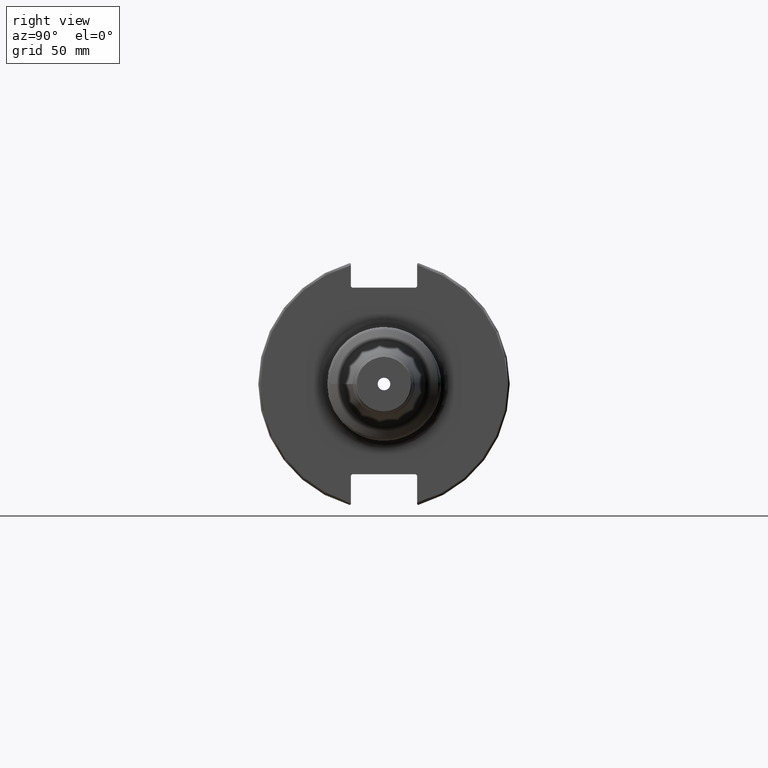
[diagram: clean part render]
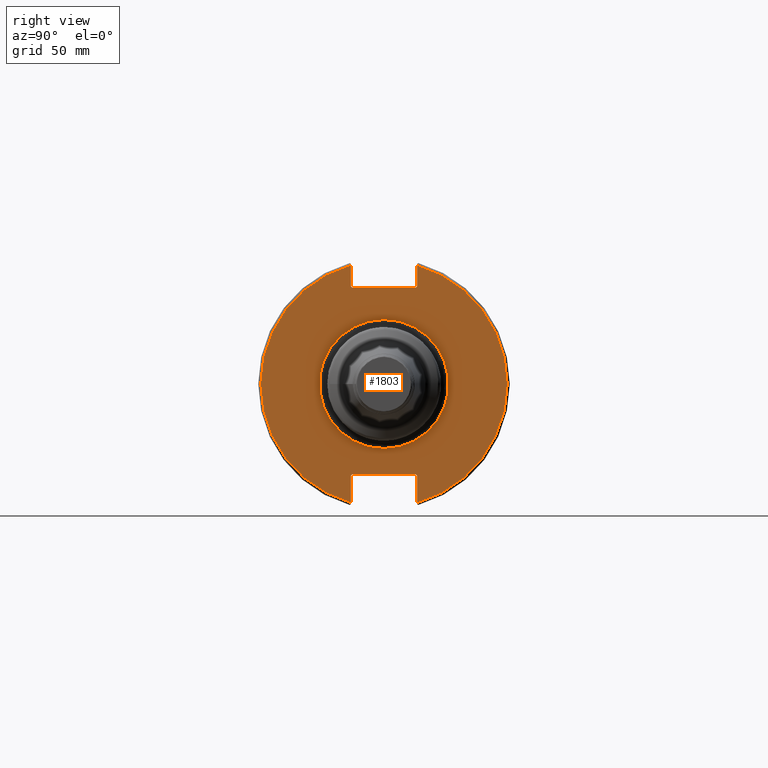
[diagram: same view with one face highlighted and labeled with its STEP entity id]
A machine part, right view. The second image highlights one B-rep face of the part: STEP entity #1803.
In plain terms, the highlighted planar face has unit normal (1, 0, 0).
Its self-contained STEP definition (entity closure, byte-faithful):
#71=FACE_BOUND('',#498,.T.);
#91=PLANE('',#1948);
#159=LINE('',#2771,#262);
#160=LINE('',#2773,#263);
#161=LINE('',#2775,#264);
#162=LINE('',#2777,#265);
#163=LINE('',#2779,#266);
#164=LINE('',#2783,#267);
#165=LINE('',#2785,#268);
#166=LINE('',#2787,#269);
#167=LINE('',#2789,#270);
#168=LINE('',#2790,#271);
#262=VECTOR('',#2211,10.);
#263=VECTOR('',#2212,10.);
#264=VECTOR('',#2213,10.);
#265=VECTOR('',#2214,10.);
#266=VECTOR('',#2215,10.);
#267=VECTOR('',#2218,10.);
#268=VECTOR('',#2219,10.);
#269=VECTOR('',#2220,10.);
#270=VECTOR('',#2221,10.);
#271=VECTOR('',#2222,10.);
#391=FACE_OUTER_BOUND('',#497,.T.);
#497=EDGE_LOOP('',(#1248,#1249,#1250,#1251,#1252,#1253,#1254,#1255,#1256,
#1257,#1258,#1259));
#498=EDGE_LOOP('',(#1260));
#632=CIRCLE('',#1947,25.25);
#633=CIRCLE('',#1949,48.2125);
#634=CIRCLE('',#1950,48.2125);
#753=VERTEX_POINT('',#2763);
#754=VERTEX_POINT('',#2767);
#755=VERTEX_POINT('',#2768);
#756=VERTEX_POINT('',#2770);
#757=VERTEX_POINT('',#2772);
#758=VERTEX_POINT('',#2774);
#759=VERTEX_POINT('',#2776);
#760=VERTEX_POINT('',#2778);
#761=VERTEX_POINT('',#2780);
#762=VERTEX_POINT('',#2782);
#763=VERTEX_POINT('',#2784);
#764=VERTEX_POINT('',#2786);
#765=VERTEX_POINT('',#2788);
#948=EDGE_CURVE('',#753,#753,#632,.T.);
#949=EDGE_CURVE('',#754,#755,#633,.T.);
#950=EDGE_CURVE('',#754,#756,#159,.T.);
#951=EDGE_CURVE('',#757,#756,#160,.T.);
#952=EDGE_CURVE('',#757,#758,#161,.T.);
#953=EDGE_CURVE('',#759,#758,#162,.T.);
#954=EDGE_CURVE('',#759,#760,#163,.T.);
#955=EDGE_CURVE('',#761,#760,#634,.T.);
#956=EDGE_CURVE('',#761,#762,#164,.T.);
#957=EDGE_CURVE('',#763,#762,#165,.T.);
#958=EDGE_CURVE('',#763,#764,#166,.T.);
#959=EDGE_CURVE('',#765,#764,#167,.T.);
#960=EDGE_CURVE('',#765,#755,#168,.T.);
#1248=ORIENTED_EDGE('',*,*,#949,.F.);
#1249=ORIENTED_EDGE('',*,*,#950,.T.);
#1250=ORIENTED_EDGE('',*,*,#951,.F.);
#1251=ORIENTED_EDGE('',*,*,#952,.T.);
#1252=ORIENTED_EDGE('',*,*,#953,.F.);
#1253=ORIENTED_EDGE('',*,*,#954,.T.);
#1254=ORIENTED_EDGE('',*,*,#955,.F.);
#1255=ORIENTED_EDGE('',*,*,#956,.T.);
#1256=ORIENTED_EDGE('',*,*,#957,.F.);
#1257=ORIENTED_EDGE('',*,*,#958,.T.);
#1258=ORIENTED_EDGE('',*,*,#959,.F.);
#1259=ORIENTED_EDGE('',*,*,#960,.T.);
#1260=ORIENTED_EDGE('',*,*,#948,.F.);
#1803=ADVANCED_FACE('',(#391,#71),#91,.T.);
#1947=AXIS2_PLACEMENT_3D('',#2765,#2205,#2206);
#1948=AXIS2_PLACEMENT_3D('',#2766,#2207,#2208);
#1949=AXIS2_PLACEMENT_3D('',#2769,#2209,#2210);
#1950=AXIS2_PLACEMENT_3D('',#2781,#2216,#2217);
#2205=DIRECTION('center_axis',(1.,0.,0.));
#2206=DIRECTION('ref_axis',(0.,-1.,-1.22464679914735E-16));
#2207=DIRECTION('center_axis',(1.,0.,0.));
#2208=DIRECTION('ref_axis',(0.,0.,-1.));
#2209=DIRECTION('center_axis',(-1.,0.,0.));
#2210=DIRECTION('ref_axis',(0.,1.,-6.12323399573677E-17));
#2211=DIRECTION('',(0.,0.,-1.));
#2212=DIRECTION('',(0.,0.707106781186549,0.707106781186546));
#2213=DIRECTION('',(0.,-1.,0.));
#2214=DIRECTION('',(0.,0.707106781186549,-0.707106781186546));
#2215=DIRECTION('',(0.,0.,1.));
#2216=DIRECTION('center_axis',(-1.,0.,0.));
#2217=DIRECTION('ref_axis',(0.,-1.,1.60812264967664E-16));
#2218=DIRECTION('',(0.,0.,1.));
#2219=DIRECTION('',(0.,-0.707106781186549,-0.707106781186546));
#2220=DIRECTION('',(0.,1.,0.));
#2221=DIRECTION('',(0.,-0.707106781186549,0.707106781186546));
#2222=DIRECTION('',(0.,0.,-1.));
#2763=CARTESIAN_POINT('',(19.05,-3.09223316784707E-15,-25.25));
#2765=CARTESIAN_POINT('Origin',(19.05,0.,0.));
#2766=CARTESIAN_POINT('Origin',(19.05,0.,0.));
#2767=CARTESIAN_POINT('',(19.05,12.95,46.4407434937254));
#2768=CARTESIAN_POINT('',(19.05,12.95,-46.4407434937254));
#2769=CARTESIAN_POINT('Origin',(19.05,0.,0.));
#2770=CARTESIAN_POINT('',(19.05,12.95,38.219));
#2771=CARTESIAN_POINT('',(19.05,12.95,18.8595));
#2772=CARTESIAN_POINT('',(19.05,12.45,37.719));
#2773=CARTESIAN_POINT('',(19.05,0.0327499999999836,25.30175));
#2774=CARTESIAN_POINT('',(19.05,-12.45,37.719));
#2775=CARTESIAN_POINT('',(19.05,0.,37.719));
#2776=CARTESIAN_POINT('',(19.05,-12.95,38.219));
#2777=CARTESIAN_POINT('',(19.05,-0.0327499999999817,25.30175));
#2778=CARTESIAN_POINT('',(19.05,-12.95,46.4407434937254));
#2779=CARTESIAN_POINT('',(19.05,-12.95,18.8595));
#2780=CARTESIAN_POINT('',(19.05,-12.95,-46.4407434937254));
#2781=CARTESIAN_POINT('Origin',(19.05,0.,0.));
#2782=CARTESIAN_POINT('',(19.05,-12.95,-35.806));
#2783=CARTESIAN_POINT('',(19.05,-12.95,-17.653));
#2784=CARTESIAN_POINT('',(19.05,-12.45,-35.306));
#2785=CARTESIAN_POINT('',(19.05,-0.635999999999989,-23.492));
#2786=CARTESIAN_POINT('',(19.05,12.45,-35.306));
#2787=CARTESIAN_POINT('',(19.05,-3.33066907387547E-15,-35.306));
#2788=CARTESIAN_POINT('',(19.05,12.95,-35.806));
#2789=CARTESIAN_POINT('',(19.05,0.635999999999982,-23.492));
#2790=CARTESIAN_POINT('',(19.05,12.95,-17.653));